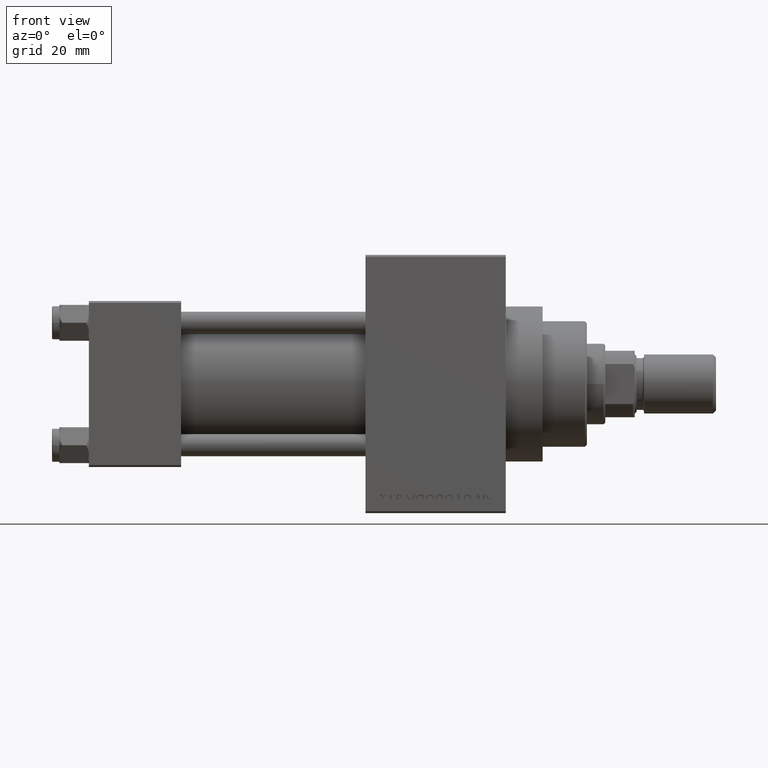
[diagram: clean part render]
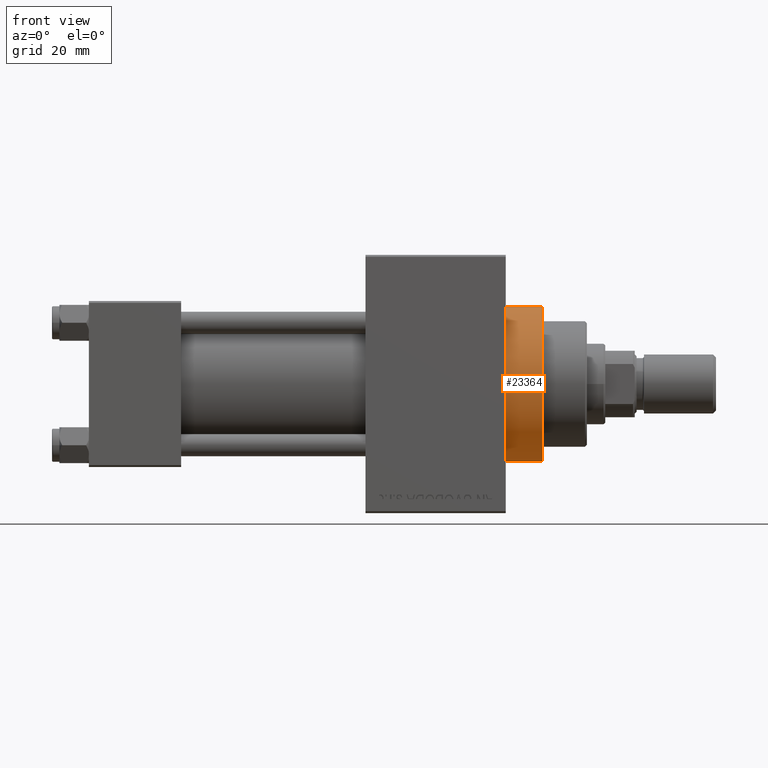
[diagram: same view with one face highlighted and labeled with its STEP entity id]
A machine part, front view. The second image highlights one B-rep face of the part: STEP entity #23364.
In plain terms, the highlighted cylindrical surface (partial cylindrical patch) has radius 21 mm, axis along (-1, -0, -0).
Its self-contained STEP definition (entity closure, byte-faithful):
#570 = CARTESIAN_POINT ( 'NONE',  ( 123.0000000000000142, 0.000000000000000000, 0.000000000000000000 ) ) ;
#1393 = CIRCLE ( 'NONE', #12122, 21.00000000000000000 ) ;
#1798 = AXIS2_PLACEMENT_3D ( 'NONE', #570, #44599, #11628 ) ;
#2337 = DIRECTION ( 'NONE',  ( -1.000000000000000000, -0.000000000000000000, -0.000000000000000000 ) ) ;
#2953 = EDGE_CURVE ( 'NONE', #33561, #6487, #9111, .T. ) ;
#3335 = DIRECTION ( 'NONE',  ( 0.000000000000000000, 0.000000000000000000, -1.000000000000000000 ) ) ;
#3463 = CYLINDRICAL_SURFACE ( 'NONE', #1798, 21.00000000000000000 ) ;
#3624 = DIRECTION ( 'NONE',  ( 1.000000000000000000, 0.000000000000000000, 0.000000000000000000 ) ) ;
#4851 = EDGE_LOOP ( 'NONE', ( #22491, #10415, #5620, #6099 ) ) ;
#5477 = CIRCLE ( 'NONE', #31558, 21.00000000000000000 ) ;
#5620 = ORIENTED_EDGE ( 'NONE', *, *, #2953, .T. ) ;
#6099 = ORIENTED_EDGE ( 'NONE', *, *, #36705, .T. ) ;
#6487 = VERTEX_POINT ( 'NONE', #46698 ) ;
#9111 = LINE ( 'NONE', #23797, #34724 ) ;
#10415 = ORIENTED_EDGE ( 'NONE', *, *, #17501, .F. ) ;
#10606 = VERTEX_POINT ( 'NONE', #30646 ) ;
#10796 = DIRECTION ( 'NONE',  ( 1.000000000000000000, 0.000000000000000000, 0.000000000000000000 ) ) ;
#11322 = CARTESIAN_POINT ( 'NONE',  ( 123.0000000000000142, 0.000000000000000000, 0.000000000000000000 ) ) ;
#11628 = DIRECTION ( 'NONE',  ( 0.000000000000000000, 0.000000000000000000, 1.000000000000000000 ) ) ;
#12122 = AXIS2_PLACEMENT_3D ( 'NONE', #36064, #10796, #3335 ) ;
#17501 = EDGE_CURVE ( 'NONE', #33561, #10606, #5477, .T. ) ;
#22491 = ORIENTED_EDGE ( 'NONE', *, *, #24157, .F. ) ;
#23364 = ADVANCED_FACE ( 'NONE', ( #36424 ), #3463, .T. ) ;
#23797 = CARTESIAN_POINT ( 'NONE',  ( 123.0000000000000142, 0.000000000000000000, 21.00000000000000000 ) ) ;
#23807 = DIRECTION ( 'NONE',  ( -1.000000000000000000, -0.000000000000000000, -0.000000000000000000 ) ) ;
#24157 = EDGE_CURVE ( 'NONE', #10606, #32592, #27410, .T. ) ;
#27410 = LINE ( 'NONE', #33718, #38717 ) ;
#29872 = CARTESIAN_POINT ( 'NONE',  ( 113.0000000000000142, 2.571758278209441661E-15, -21.00000000000000000 ) ) ;
#30646 = CARTESIAN_POINT ( 'NONE',  ( 123.0000000000000142, 2.571758278209441661E-15, -21.00000000000000000 ) ) ;
#30843 = CARTESIAN_POINT ( 'NONE',  ( 123.0000000000000142, 0.000000000000000000, 21.00000000000000000 ) ) ;
#31558 = AXIS2_PLACEMENT_3D ( 'NONE', #11322, #3624, #32979 ) ;
#32592 = VERTEX_POINT ( 'NONE', #29872 ) ;
#32979 = DIRECTION ( 'NONE',  ( 0.000000000000000000, 0.000000000000000000, -1.000000000000000000 ) ) ;
#33561 = VERTEX_POINT ( 'NONE', #30843 ) ;
#33718 = CARTESIAN_POINT ( 'NONE',  ( 123.0000000000000142, 2.571758278209441661E-15, -21.00000000000000000 ) ) ;
#34724 = VECTOR ( 'NONE', #2337, 1000.000000000000000 ) ;
#36064 = CARTESIAN_POINT ( 'NONE',  ( 113.0000000000000142, 0.000000000000000000, 0.000000000000000000 ) ) ;
#36424 = FACE_OUTER_BOUND ( 'NONE', #4851, .T. ) ;
#36705 = EDGE_CURVE ( 'NONE', #6487, #32592, #1393, .T. ) ;
#38717 = VECTOR ( 'NONE', #23807, 1000.000000000000000 ) ;
#44599 = DIRECTION ( 'NONE',  ( -1.000000000000000000, -0.000000000000000000, -0.000000000000000000 ) ) ;
#46698 = CARTESIAN_POINT ( 'NONE',  ( 113.0000000000000142, 0.000000000000000000, 21.00000000000000000 ) ) ;